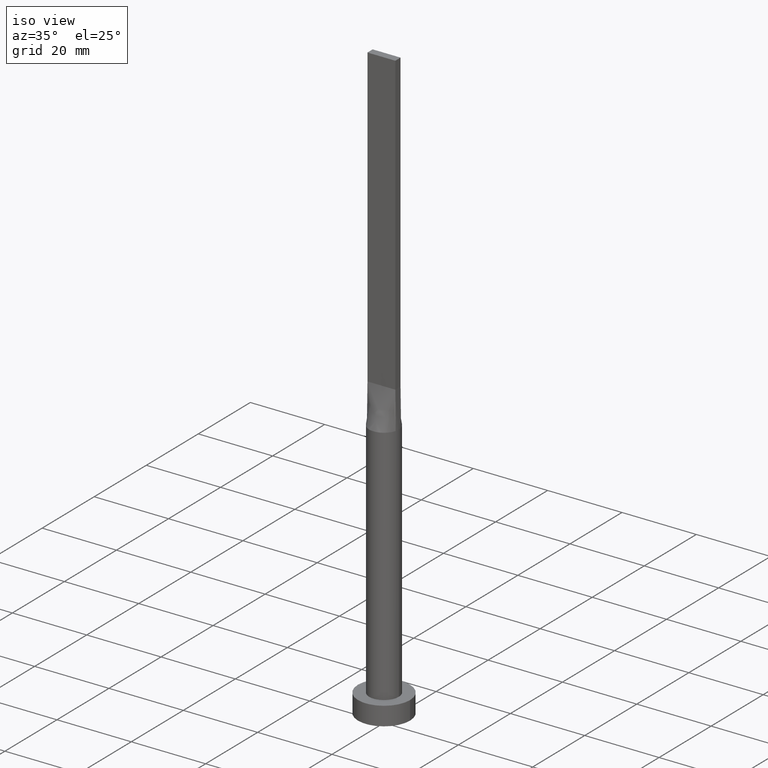
[diagram: clean part render]
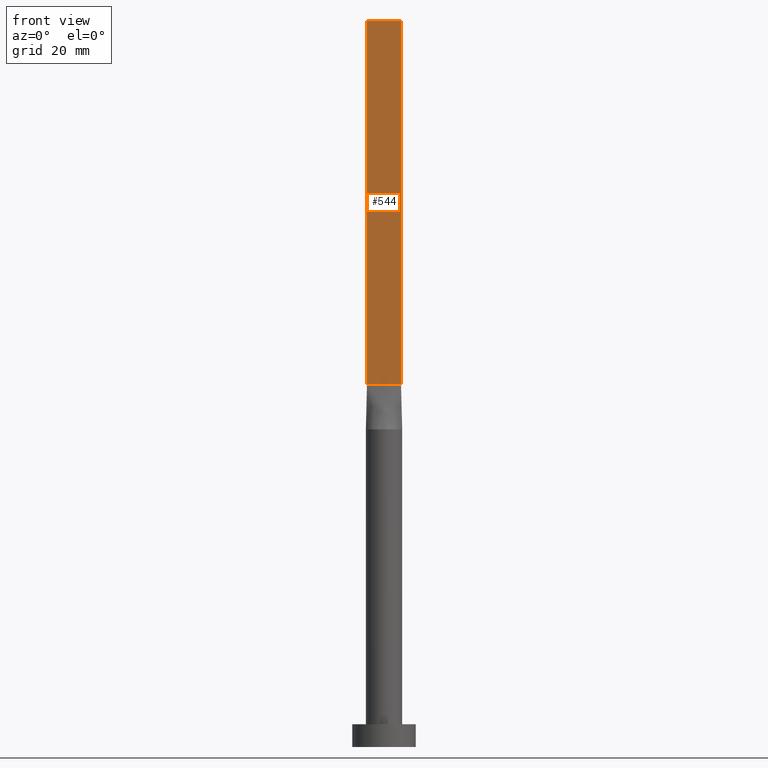
[diagram: tour spotlight — one face highlighted and labeled with its STEP entity id]
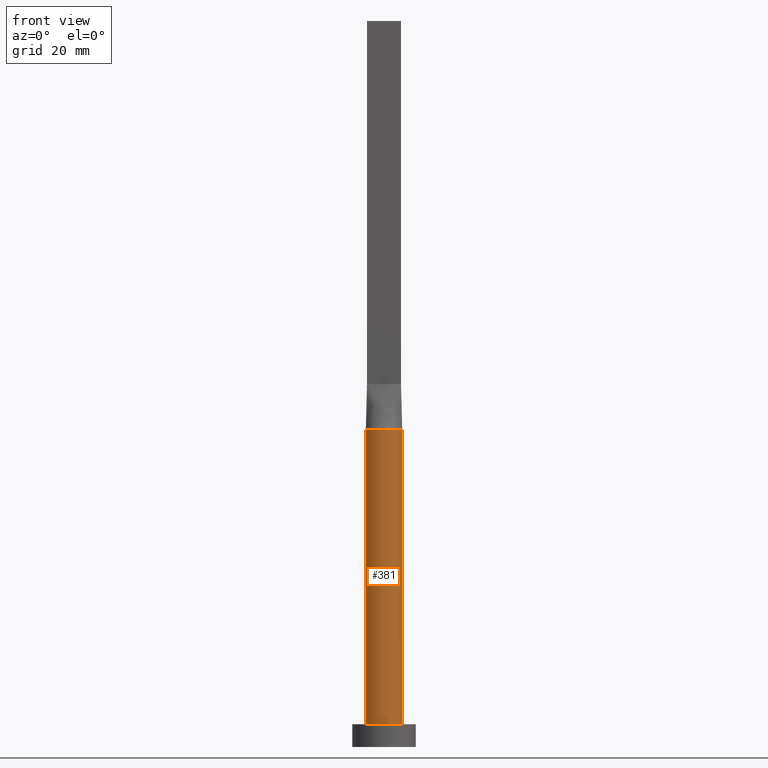
[diagram: tour spotlight — one face highlighted and labeled with its STEP entity id]
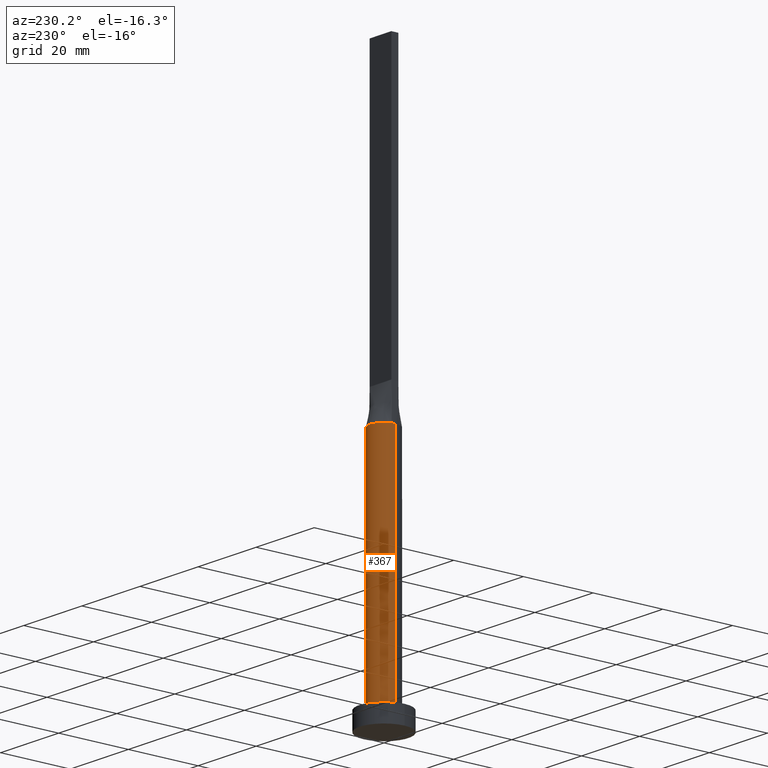
[diagram: tour spotlight — one face highlighted and labeled with its STEP entity id]
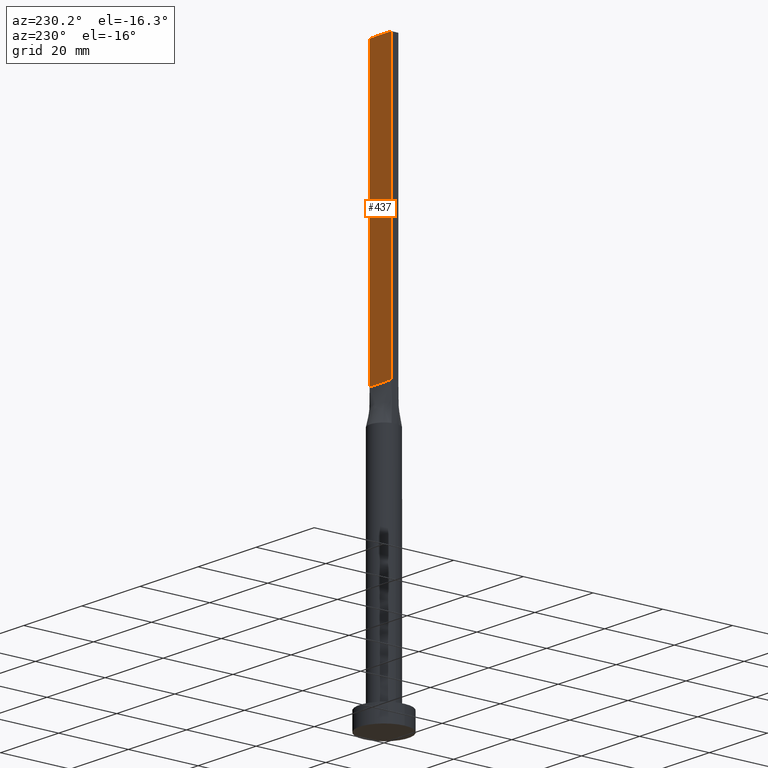
[diagram: tour spotlight — one face highlighted and labeled with its STEP entity id]
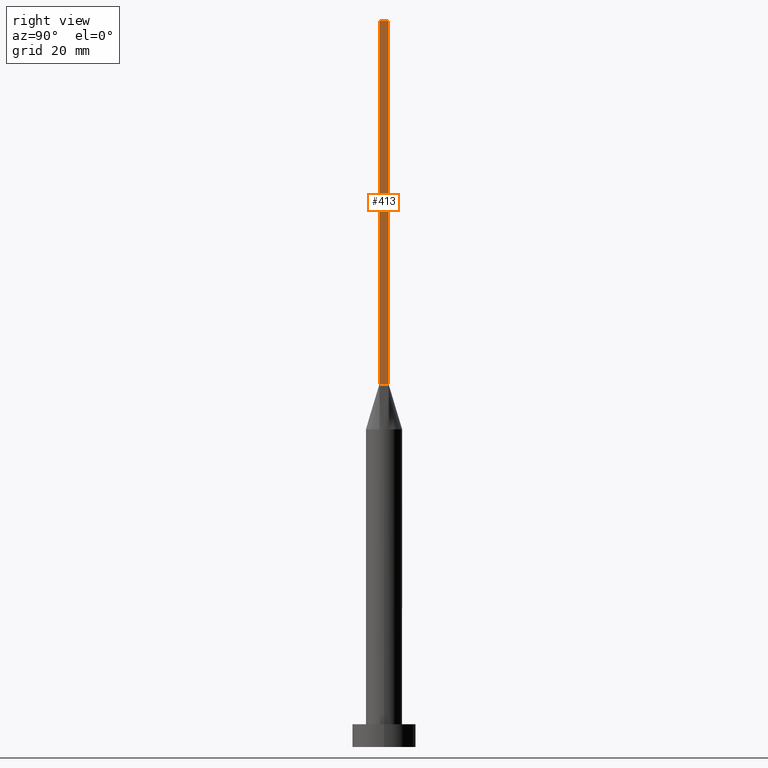
[diagram: tour spotlight — one face highlighted and labeled with its STEP entity id]
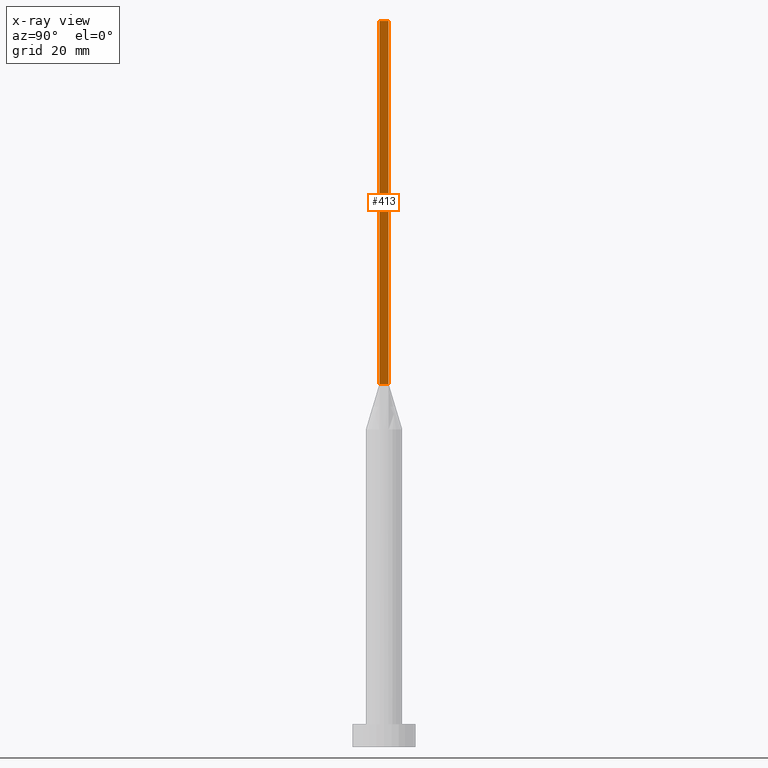
[diagram: x-ray of the same camera — body ghosted, this tour face saturated]
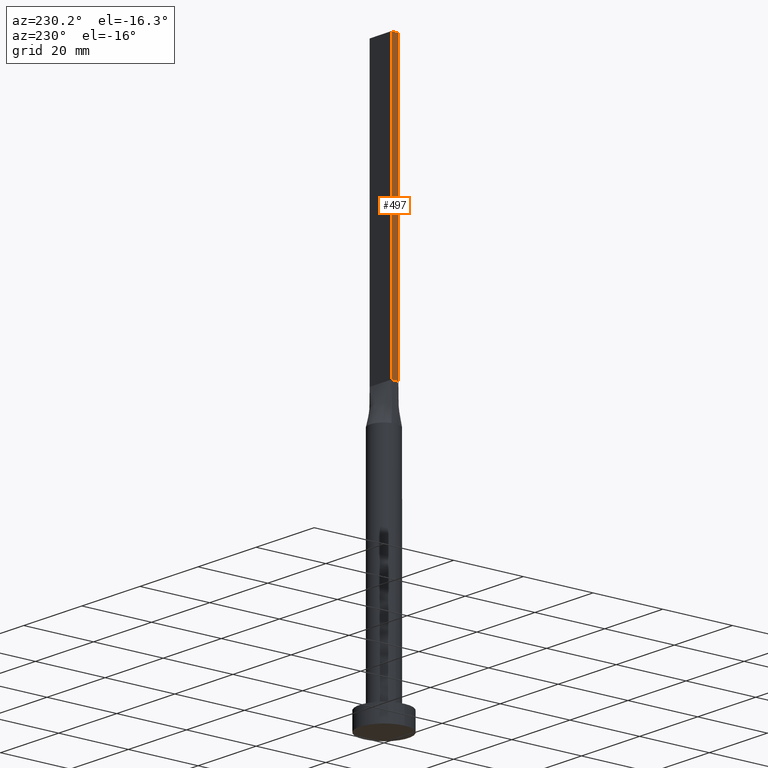
[diagram: tour spotlight — one face highlighted and labeled with its STEP entity id]
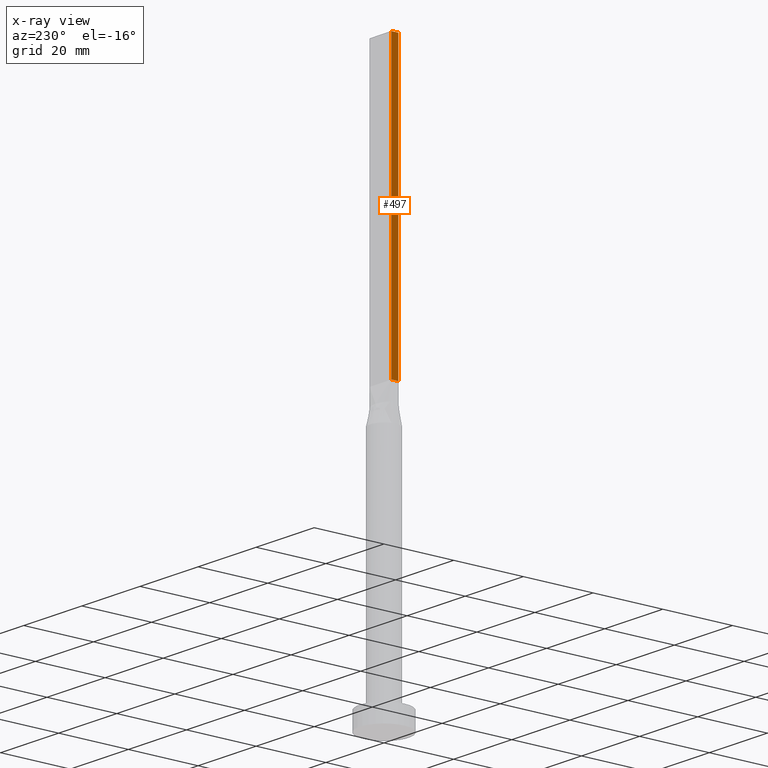
[diagram: x-ray of the same camera — body ghosted, this tour face saturated]
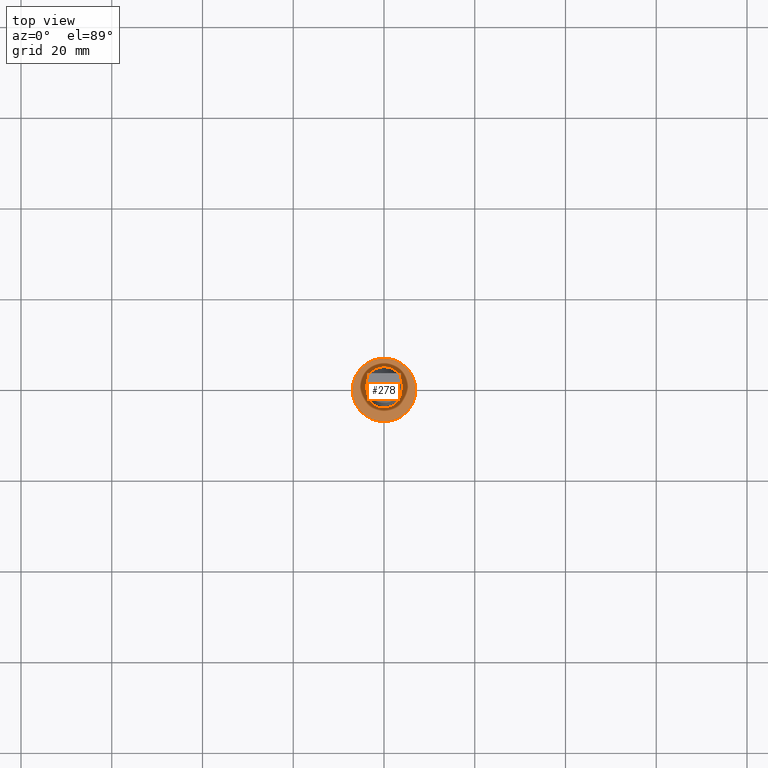
[diagram: tour spotlight — one face highlighted and labeled with its STEP entity id]
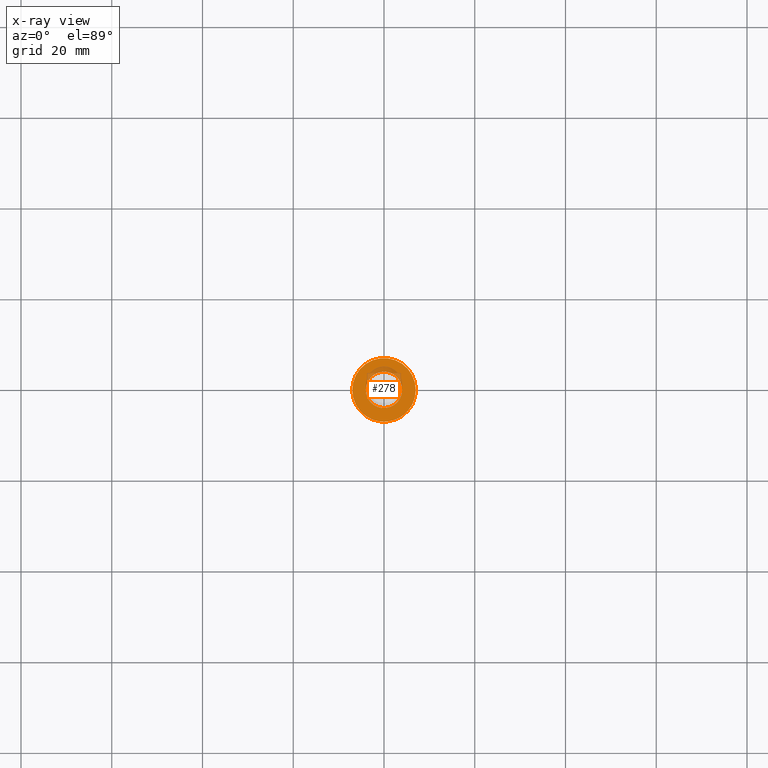
[diagram: x-ray of the same camera — body ghosted, this tour face saturated]
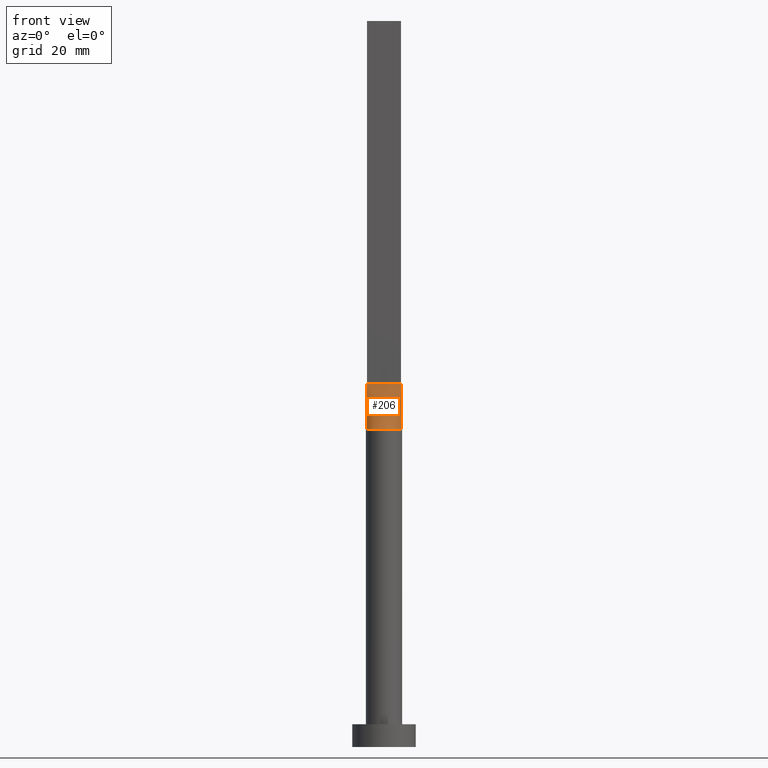
[diagram: tour spotlight — one face highlighted and labeled with its STEP entity id]
A machine part: a face-by-face anatomy tour. The part has 15 B-rep faces; the first image is the clean iso view, then the 8 largest visible faces are spotlighted one at a time (largest first), each with its STEP entity span.

Face 1 — front view, entity #544. In plain terms, the highlighted planar face has unit normal (0, 1, -0).
Definition (entity closure, byte-faithful):
#25 = VERTEX_POINT ( 'NONE', #521 ) ;
#31 = CARTESIAN_POINT ( 'NONE',  ( 3.750000000000000000, -0.9999999999999997780, 160.0000000000000000 ) ) ;
#32 = CARTESIAN_POINT ( 'NONE',  ( -3.750000000000000000, -0.9999999999999991118, 160.0000000000000000 ) ) ;
#54 = CARTESIAN_POINT ( 'NONE',  ( -3.750000000000000000, -0.9999999999999991118, 80.00000000000000000 ) ) ;
#78 = PLANE ( 'NONE',  #412 ) ;
#83 = EDGE_CURVE ( 'NONE', #246, #402, #368, .T. ) ;
#102 = DIRECTION ( 'NONE',  ( 1.000000000000000000, -8.673617379884035472E-17, 0.000000000000000000 ) ) ;
#124 = DIRECTION ( 'NONE',  ( 1.000000000000000000, -8.673617379884035472E-17, 0.000000000000000000 ) ) ;
#145 = VECTOR ( 'NONE', #102, 1000.000000000000000 ) ;
#165 = EDGE_CURVE ( 'NONE', #268, #402, #465, .T. ) ;
#172 = ORIENTED_EDGE ( 'NONE', *, *, #165, .F. ) ;
#202 = DIRECTION ( 'NONE',  ( -0.000000000000000000, -0.000000000000000000, -1.000000000000000000 ) ) ;
#210 = VECTOR ( 'NONE', #202, 1000.000000000000000 ) ;
#214 = ORIENTED_EDGE ( 'NONE', *, *, #447, .F. ) ;
#234 = VECTOR ( 'NONE', #453, 1000.000000000000000 ) ;
#243 = VECTOR ( 'NONE', #124, 1000.000000000000000 ) ;
#246 = VERTEX_POINT ( 'NONE', #54 ) ;
#255 = LINE ( 'NONE', #571, #210 ) ;
#265 = CARTESIAN_POINT ( 'NONE',  ( 3.750000000000000000, -0.9999999999999997780, 160.0000000000000000 ) ) ;
#268 = VERTEX_POINT ( 'NONE', #31 ) ;
#339 = LINE ( 'NONE', #386, #243 ) ;
#368 = LINE ( 'NONE', #513, #145 ) ;
#385 = DIRECTION ( 'NONE',  ( -1.000000000000000000, 8.673617379884035472E-17, 0.000000000000000000 ) ) ;
#386 = CARTESIAN_POINT ( 'NONE',  ( -3.750000000000000000, -0.9999999999999991118, 160.0000000000000000 ) ) ;
#402 = VERTEX_POINT ( 'NONE', #509 ) ;
#412 = AXIS2_PLACEMENT_3D ( 'NONE', #32, #573, #385 ) ;
#447 = EDGE_CURVE ( 'NONE', #25, #268, #339, .T. ) ;
#453 = DIRECTION ( 'NONE',  ( -0.000000000000000000, -0.000000000000000000, -1.000000000000000000 ) ) ;
#465 = LINE ( 'NONE', #265, #234 ) ;
#509 = CARTESIAN_POINT ( 'NONE',  ( 3.750000000000000000, -0.9999999999999997780, 80.00000000000000000 ) ) ;
#513 = CARTESIAN_POINT ( 'NONE',  ( -3.750000000000000000, -0.9999999999999991118, 80.00000000000000000 ) ) ;
#521 = CARTESIAN_POINT ( 'NONE',  ( -3.750000000000000000, -0.9999999999999991118, 160.0000000000000000 ) ) ;
#526 = ORIENTED_EDGE ( 'NONE', *, *, #548, .T. ) ;
#534 = FACE_OUTER_BOUND ( 'NONE', #545, .T. ) ;
#544 = ADVANCED_FACE ( 'NONE', ( #534 ), #78, .F. ) ;
#545 = EDGE_LOOP ( 'NONE', ( #559, #172, #214, #526 ) ) ;
#548 = EDGE_CURVE ( 'NONE', #25, #246, #255, .T. ) ;
#559 = ORIENTED_EDGE ( 'NONE', *, *, #83, .T. ) ;
#571 = CARTESIAN_POINT ( 'NONE',  ( -3.750000000000000000, -0.9999999999999991118, 160.0000000000000000 ) ) ;
#573 = DIRECTION ( 'NONE',  ( 8.673617379884035472E-17, 1.000000000000000000, -0.000000000000000000 ) ) ;

Face 2 — front view, entity #381. In plain terms, the highlighted cylindrical surface (edge-blend (fillet) strip) has radius 4 mm, axis along (-0, -0, -1).
Definition (entity closure, byte-faithful):
#13 = AXIS2_PLACEMENT_3D ( 'NONE', #168, #372, #253 ) ;
#47 = DIRECTION ( 'NONE',  ( 0.000000000000000000, 0.000000000000000000, 1.000000000000000000 ) ) ;
#49 = VERTEX_POINT ( 'NONE', #334 ) ;
#50 = CIRCLE ( 'NONE', #13, 4.000000000000000000 ) ;
#64 = CARTESIAN_POINT ( 'NONE',  ( -3.865220763612065902, -1.030726602927787949, 70.00000000000000000 ) ) ;
#70 = ORIENTED_EDGE ( 'NONE', *, *, #538, .F. ) ;
#79 = CARTESIAN_POINT ( 'NONE',  ( -4.000000000000000000, 0.000000000000000000, 70.00000000000000000 ) ) ;
#86 = AXIS2_PLACEMENT_3D ( 'NONE', #251, #563, #389 ) ;
#115 = EDGE_CURVE ( 'NONE', #231, #504, #345, .T. ) ;
#121 = DIRECTION ( 'NONE',  ( 0.000000000000000000, 0.000000000000000000, 1.000000000000000000 ) ) ;
#130 = ORIENTED_EDGE ( 'NONE', *, *, #487, .F. ) ;
#132 = DIRECTION ( 'NONE',  ( 1.000000000000000000, 0.000000000000000000, 0.000000000000000000 ) ) ;
#135 = VECTOR ( 'NONE', #466, 1000.000000000000000 ) ;
#144 = DIRECTION ( 'NONE',  ( -1.000000000000000000, 0.000000000000000000, 0.000000000000000000 ) ) ;
#153 = LINE ( 'NONE', #514, #135 ) ;
#159 = DIRECTION ( 'NONE',  ( 1.000000000000000000, -6.217248937900876626E-15, 0.000000000000000000 ) ) ;
#168 = CARTESIAN_POINT ( 'NONE',  ( 0.000000000000000000, 0.000000000000000000, 70.00000000000000000 ) ) ;
#193 = FACE_OUTER_BOUND ( 'NONE', #347, .T. ) ;
#203 = CARTESIAN_POINT ( 'NONE',  ( -4.000000000000000000, 0.000000000000000000, 5.000000000000000000 ) ) ;
#231 = VERTEX_POINT ( 'NONE', #522 ) ;
#251 = CARTESIAN_POINT ( 'NONE',  ( 0.000000000000000000, 0.000000000000000000, 70.00000000000000000 ) ) ;
#252 = DIRECTION ( 'NONE',  ( -0.000000000000000000, -0.000000000000000000, -1.000000000000000000 ) ) ;
#253 = DIRECTION ( 'NONE',  ( 1.000000000000000000, 0.000000000000000000, 0.000000000000000000 ) ) ;
#291 = VECTOR ( 'NONE', #252, 1000.000000000000000 ) ;
#311 = EDGE_CURVE ( 'NONE', #504, #312, #556, .T. ) ;
#312 = VERTEX_POINT ( 'NONE', #401 ) ;
#327 = DIRECTION ( 'NONE',  ( -0.000000000000000000, -0.000000000000000000, -1.000000000000000000 ) ) ;
#331 = CIRCLE ( 'NONE', #86, 4.000000000000000000 ) ;
#334 = CARTESIAN_POINT ( 'NONE',  ( 3.865244591400370577, -1.030732999276501527, 70.00000000000000000 ) ) ;
#345 = LINE ( 'NONE', #79, #291 ) ;
#347 = EDGE_LOOP ( 'NONE', ( #577, #130, #433, #70, #533, #428 ) ) ;
#349 = CARTESIAN_POINT ( 'NONE',  ( 0.000000000000000000, 0.000000000000000000, 5.000000000000000000 ) ) ;
#359 = EDGE_CURVE ( 'NONE', #547, #312, #153, .T. ) ;
#360 = CARTESIAN_POINT ( 'NONE',  ( 0.000000000000000000, 0.000000000000000000, 70.00000000000000000 ) ) ;
#362 = AXIS2_PLACEMENT_3D ( 'NONE', #360, #327, #144 ) ;
#372 = DIRECTION ( 'NONE',  ( 0.000000000000000000, 0.000000000000000000, 1.000000000000000000 ) ) ;
#375 = CARTESIAN_POINT ( 'NONE',  ( 4.000000000000000000, -1.256865613583667397E-17, 70.00000000000000000 ) ) ;
#381 = ADVANCED_FACE ( 'NONE', ( #193 ), #477, .T. ) ;
#389 = DIRECTION ( 'NONE',  ( 1.000000000000000000, 0.000000000000000000, 0.000000000000000000 ) ) ;
#401 = CARTESIAN_POINT ( 'NONE',  ( 4.000000000000000000, 4.898587196589412829E-16, 5.000000000000000000 ) ) ;
#428 = ORIENTED_EDGE ( 'NONE', *, *, #311, .T. ) ;
#433 = ORIENTED_EDGE ( 'NONE', *, *, #505, .F. ) ;
#434 = CARTESIAN_POINT ( 'NONE',  ( 0.000000000000000000, 0.000000000000000000, 70.00000000000000000 ) ) ;
#455 = VERTEX_POINT ( 'NONE', #64 ) ;
#466 = DIRECTION ( 'NONE',  ( -0.000000000000000000, -0.000000000000000000, -1.000000000000000000 ) ) ;
#470 = CIRCLE ( 'NONE', #471, 4.000000000000000000 ) ;
#471 = AXIS2_PLACEMENT_3D ( 'NONE', #434, #121, #159 ) ;
#477 = CYLINDRICAL_SURFACE ( 'NONE', #362, 4.000000000000000000 ) ;
#487 = EDGE_CURVE ( 'NONE', #49, #547, #470, .T. ) ;
#504 = VERTEX_POINT ( 'NONE', #203 ) ;
#505 = EDGE_CURVE ( 'NONE', #455, #49, #50, .T. ) ;
#514 = CARTESIAN_POINT ( 'NONE',  ( 4.000000000000000000, 4.898587196589412829E-16, 70.00000000000000000 ) ) ;
#522 = CARTESIAN_POINT ( 'NONE',  ( -4.000000000000000000, -2.459132308497027359E-16, 70.00000000000000000 ) ) ;
#533 = ORIENTED_EDGE ( 'NONE', *, *, #115, .T. ) ;
#538 = EDGE_CURVE ( 'NONE', #231, #455, #331, .T. ) ;
#547 = VERTEX_POINT ( 'NONE', #375 ) ;
#556 = CIRCLE ( 'NONE', #568, 4.000000000000000000 ) ;
#563 = DIRECTION ( 'NONE',  ( 0.000000000000000000, 0.000000000000000000, 1.000000000000000000 ) ) ;
#568 = AXIS2_PLACEMENT_3D ( 'NONE', #349, #47, #132 ) ;
#577 = ORIENTED_EDGE ( 'NONE', *, *, #359, .F. ) ;

Face 3 — auxiliary view, entity #367. In plain terms, the highlighted cylindrical surface (edge-blend (fillet) strip) has radius 4 mm, axis along (-0, -0, -1).
Definition (entity closure, byte-faithful):
#2 = CIRCLE ( 'NONE', #260, 4.000000000000000000 ) ;
#3 = DIRECTION ( 'NONE',  ( 1.000000000000000000, 0.000000000000000000, 0.000000000000000000 ) ) ;
#10 = CARTESIAN_POINT ( 'NONE',  ( -3.009488128496037529, 2.672487015486668671, 69.99999999999998579 ) ) ;
#14 = DIRECTION ( 'NONE',  ( -1.000000000000000000, 0.000000000000000000, 0.000000000000000000 ) ) ;
#19 = CARTESIAN_POINT ( 'NONE',  ( -3.865236553917747120, 1.030730781768519622, 70.00000000000000000 ) ) ;
#29 = CARTESIAN_POINT ( 'NONE',  ( 3.865212754195084699, 1.030724393897464841, 70.00000000000000000 ) ) ;
#42 = AXIS2_PLACEMENT_3D ( 'NONE', #284, #147, #14 ) ;
#43 = EDGE_LOOP ( 'NONE', ( #163, #540, #541, #261, #223, #84 ) ) ;
#56 = CARTESIAN_POINT ( 'NONE',  ( 3.267840578657193795, 2.338604872288698289, 70.00000000000000000 ) ) ;
#60 = CARTESIAN_POINT ( 'NONE',  ( 3.865212754195084699, 1.030724393897464841, 70.00000000000000000 ) ) ;
#66 = EDGE_CURVE ( 'NONE', #312, #504, #511, .T. ) ;
#79 = CARTESIAN_POINT ( 'NONE',  ( -4.000000000000000000, 0.000000000000000000, 70.00000000000000000 ) ) ;
#84 = ORIENTED_EDGE ( 'NONE', *, *, #405, .F. ) ;
#97 = CARTESIAN_POINT ( 'NONE',  ( 1.023074425454087999, 3.898373771260456255, 69.99999999999998579 ) ) ;
#108 = CARTESIAN_POINT ( 'NONE',  ( -1.023074425454088221, 3.898373771260455811, 70.00000000000001421 ) ) ;
#112 = FACE_OUTER_BOUND ( 'NONE', #43, .T. ) ;
#115 = EDGE_CURVE ( 'NONE', #231, #504, #345, .T. ) ;
#135 = VECTOR ( 'NONE', #466, 1000.000000000000000 ) ;
#147 = DIRECTION ( 'NONE',  ( -0.000000000000000000, -0.000000000000000000, -1.000000000000000000 ) ) ;
#150 = CARTESIAN_POINT ( 'NONE',  ( -0.5121855420560009753, 4.000000000000000888, 69.99999999999998579 ) ) ;
#153 = LINE ( 'NONE', #514, #135 ) ;
#154 = AXIS2_PLACEMENT_3D ( 'NONE', #557, #198, #519 ) ;
#163 = ORIENTED_EDGE ( 'NONE', *, *, #174, .F. ) ;
#174 = EDGE_CURVE ( 'NONE', #547, #491, #342, .T. ) ;
#189 = CYLINDRICAL_SURFACE ( 'NONE', #42, 4.000000000000000000 ) ;
#198 = DIRECTION ( 'NONE',  ( 0.000000000000000000, 0.000000000000000000, 1.000000000000000000 ) ) ;
#203 = CARTESIAN_POINT ( 'NONE',  ( -4.000000000000000000, 0.000000000000000000, 5.000000000000000000 ) ) ;
#204 = VERTEX_POINT ( 'NONE', #569 ) ;
#223 = ORIENTED_EDGE ( 'NONE', *, *, #301, .F. ) ;
#230 = CARTESIAN_POINT ( 'NONE',  ( 0.000000000000000000, 0.000000000000000000, 70.00000000000000000 ) ) ;
#231 = VERTEX_POINT ( 'NONE', #522 ) ;
#239 = CARTESIAN_POINT ( 'NONE',  ( 3.009488128496037085, 2.672487015486669115, 70.00000000000000000 ) ) ;
#242 = CARTESIAN_POINT ( 'NONE',  ( 3.781952206537764205, 1.341853921743403788, 70.00000000000001421 ) ) ;
#252 = DIRECTION ( 'NONE',  ( -0.000000000000000000, -0.000000000000000000, -1.000000000000000000 ) ) ;
#260 = AXIS2_PLACEMENT_3D ( 'NONE', #230, #399, #3 ) ;
#261 = ORIENTED_EDGE ( 'NONE', *, *, #115, .F. ) ;
#284 = CARTESIAN_POINT ( 'NONE',  ( 0.000000000000000000, 0.000000000000000000, 70.00000000000000000 ) ) ;
#291 = VECTOR ( 'NONE', #252, 1000.000000000000000 ) ;
#301 = EDGE_CURVE ( 'NONE', #204, #231, #2, .T. ) ;
#312 = VERTEX_POINT ( 'NONE', #401 ) ;
#322 = CARTESIAN_POINT ( 'NONE',  ( -3.653499896451231521, 1.673258289339058180, 70.00000000000001421 ) ) ;
#333 = AXIS2_PLACEMENT_3D ( 'NONE', #363, #403, #553 ) ;
#342 = CIRCLE ( 'NONE', #333, 4.000000000000000000 ) ;
#345 = LINE ( 'NONE', #79, #291 ) ;
#359 = EDGE_CURVE ( 'NONE', #547, #312, #153, .T. ) ;
#361 = CARTESIAN_POINT ( 'NONE',  ( 0.5121855420560009753, 4.000000000000000888, 70.00000000000000000 ) ) ;
#363 = CARTESIAN_POINT ( 'NONE',  ( 0.000000000000000000, 0.000000000000000000, 70.00000000000000000 ) ) ;
#366 = CARTESIAN_POINT ( 'NONE',  ( -2.346407003458401253, 3.270103945996944095, 70.00000000000001421 ) ) ;
#367 = ADVANCED_FACE ( 'NONE', ( #112 ), #189, .T. ) ;
#375 = CARTESIAN_POINT ( 'NONE',  ( 4.000000000000000000, -1.256865613583667397E-17, 70.00000000000000000 ) ) ;
#399 = DIRECTION ( 'NONE',  ( 0.000000000000000000, 0.000000000000000000, 1.000000000000000000 ) ) ;
#401 = CARTESIAN_POINT ( 'NONE',  ( 4.000000000000000000, 4.898587196589412829E-16, 5.000000000000000000 ) ) ;
#403 = DIRECTION ( 'NONE',  ( 0.000000000000000000, 0.000000000000000000, 1.000000000000000000 ) ) ;
#405 = EDGE_CURVE ( 'NONE', #491, #204, #558, .T. ) ;
#416 = CARTESIAN_POINT ( 'NONE',  ( 1.940702937457743582, 3.532374760555930582, 70.00000000000000000 ) ) ;
#420 = CARTESIAN_POINT ( 'NONE',  ( -1.940702937457743138, 3.532374760555930582, 69.99999999999998579 ) ) ;
#466 = DIRECTION ( 'NONE',  ( -0.000000000000000000, -0.000000000000000000, -1.000000000000000000 ) ) ;
#469 = CARTESIAN_POINT ( 'NONE',  ( 3.653499896451231521, 1.673258289339057958, 70.00000000000000000 ) ) ;
#473 = CARTESIAN_POINT ( 'NONE',  ( 2.346407003458400808, 3.270103945996944983, 69.99999999999998579 ) ) ;
#491 = VERTEX_POINT ( 'NONE', #29 ) ;
#504 = VERTEX_POINT ( 'NONE', #203 ) ;
#511 = CIRCLE ( 'NONE', #154, 4.000000000000000000 ) ;
#512 = CARTESIAN_POINT ( 'NONE',  ( -3.781952206537765537, 1.341853921743403788, 70.00000000000001421 ) ) ;
#514 = CARTESIAN_POINT ( 'NONE',  ( 4.000000000000000000, 4.898587196589412829E-16, 70.00000000000000000 ) ) ;
#519 = DIRECTION ( 'NONE',  ( 1.000000000000000000, 0.000000000000000000, 0.000000000000000000 ) ) ;
#522 = CARTESIAN_POINT ( 'NONE',  ( -4.000000000000000000, -2.459132308497027359E-16, 70.00000000000000000 ) ) ;
#540 = ORIENTED_EDGE ( 'NONE', *, *, #359, .T. ) ;
#541 = ORIENTED_EDGE ( 'NONE', *, *, #66, .T. ) ;
#547 = VERTEX_POINT ( 'NONE', #375 ) ;
#550 = CARTESIAN_POINT ( 'NONE',  ( -3.267840578657194239, 2.338604872288698289, 70.00000000000001421 ) ) ;
#553 = DIRECTION ( 'NONE',  ( 1.000000000000000000, 0.000000000000000000, 0.000000000000000000 ) ) ;
#557 = CARTESIAN_POINT ( 'NONE',  ( 0.000000000000000000, 0.000000000000000000, 5.000000000000000000 ) ) ;
#558 = B_SPLINE_CURVE_WITH_KNOTS ( 'NONE', 3,
 ( #60, #242, #469, #56, #239, #473, #416, #97, #361, #150, #108, #420, #366, #10, #550, #322, #512, #19 ),
 .UNSPECIFIED., .F., .F.,
 ( 4, 2, 2, 2, 2, 2, 2, 2, 4 ),
 ( 0.000000000000000000, 0.1250000000000000000, 0.2500000000000000000, 0.3750000000000000000, 0.5000000000000000000, 0.6250000000000000000, 0.7500000000000000000, 0.8750000000000000000, 1.000000000000000000 ),
 .UNSPECIFIED. ) ;
#569 = CARTESIAN_POINT ( 'NONE',  ( -3.865236553917747120, 1.030730781768519622, 70.00000000000000000 ) ) ;

Face 4 — auxiliary view, entity #437. In plain terms, the highlighted planar face has unit normal (0, -1, 0).
Definition (entity closure, byte-faithful):
#16 = EDGE_CURVE ( 'NONE', #350, #579, #146, .T. ) ;
#21 = CARTESIAN_POINT ( 'NONE',  ( 3.750000000000000000, 1.000000000000000000, 160.0000000000000000 ) ) ;
#99 = CARTESIAN_POINT ( 'NONE',  ( -3.750000000000000000, 1.000000000000000000, 160.0000000000000000 ) ) ;
#100 = CARTESIAN_POINT ( 'NONE',  ( 3.750000000000000000, 1.000000000000000000, 80.00000000000000000 ) ) ;
#133 = VERTEX_POINT ( 'NONE', #100 ) ;
#146 = LINE ( 'NONE', #99, #279 ) ;
#164 = CARTESIAN_POINT ( 'NONE',  ( -3.750000000000000000, 1.000000000000000000, 80.00000000000000000 ) ) ;
#201 = LINE ( 'NONE', #248, #450 ) ;
#219 = LINE ( 'NONE', #394, #461 ) ;
#235 = CARTESIAN_POINT ( 'NONE',  ( -3.750000000000000000, 1.000000000000000000, 160.0000000000000000 ) ) ;
#248 = CARTESIAN_POINT ( 'NONE',  ( 3.750000000000000000, 1.000000000000000000, 160.0000000000000000 ) ) ;
#264 = EDGE_CURVE ( 'NONE', #464, #350, #435, .T. ) ;
#279 = VECTOR ( 'NONE', #410, 1000.000000000000000 ) ;
#290 = VECTOR ( 'NONE', #486, 1000.000000000000000 ) ;
#302 = DIRECTION ( 'NONE',  ( -0.000000000000000000, -0.000000000000000000, -1.000000000000000000 ) ) ;
#303 = AXIS2_PLACEMENT_3D ( 'NONE', #21, #335, #560 ) ;
#335 = DIRECTION ( 'NONE',  ( 0.000000000000000000, -1.000000000000000000, 0.000000000000000000 ) ) ;
#350 = VERTEX_POINT ( 'NONE', #235 ) ;
#351 = EDGE_CURVE ( 'NONE', #133, #579, #219, .T. ) ;
#370 = ORIENTED_EDGE ( 'NONE', *, *, #264, .F. ) ;
#394 = CARTESIAN_POINT ( 'NONE',  ( -3.750000000000000000, 1.000000000000000000, 80.00000000000000000 ) ) ;
#396 = EDGE_LOOP ( 'NONE', ( #496, #498, #370, #421 ) ) ;
#410 = DIRECTION ( 'NONE',  ( -0.000000000000000000, -0.000000000000000000, -1.000000000000000000 ) ) ;
#421 = ORIENTED_EDGE ( 'NONE', *, *, #476, .T. ) ;
#431 = CARTESIAN_POINT ( 'NONE',  ( 3.750000000000000000, 1.000000000000000000, 160.0000000000000000 ) ) ;
#435 = LINE ( 'NONE', #530, #290 ) ;
#437 = ADVANCED_FACE ( 'NONE', ( #535 ), #489, .F. ) ;
#450 = VECTOR ( 'NONE', #302, 1000.000000000000000 ) ;
#461 = VECTOR ( 'NONE', #576, 1000.000000000000000 ) ;
#464 = VERTEX_POINT ( 'NONE', #431 ) ;
#476 = EDGE_CURVE ( 'NONE', #464, #133, #201, .T. ) ;
#486 = DIRECTION ( 'NONE',  ( -1.000000000000000000, 0.000000000000000000, 0.000000000000000000 ) ) ;
#489 = PLANE ( 'NONE',  #303 ) ;
#496 = ORIENTED_EDGE ( 'NONE', *, *, #351, .T. ) ;
#498 = ORIENTED_EDGE ( 'NONE', *, *, #16, .F. ) ;
#530 = CARTESIAN_POINT ( 'NONE',  ( 3.750000000000000000, 1.000000000000000000, 160.0000000000000000 ) ) ;
#535 = FACE_OUTER_BOUND ( 'NONE', #396, .T. ) ;
#560 = DIRECTION ( 'NONE',  ( 0.000000000000000000, -0.000000000000000000, -1.000000000000000000 ) ) ;
#576 = DIRECTION ( 'NONE',  ( -1.000000000000000000, -0.000000000000000000, -0.000000000000000000 ) ) ;
#579 = VERTEX_POINT ( 'NONE', #164 ) ;

Face 5 — right view, entity #413. An x-ray twin of the same camera follows (body ghosted, this face saturated) — the face is partly hidden behind the body. In plain terms, the highlighted planar face has unit normal (-1, 0, 0).
Definition (entity closure, byte-faithful):
#31 = CARTESIAN_POINT ( 'NONE',  ( 3.750000000000000000, -0.9999999999999997780, 160.0000000000000000 ) ) ;
#34 = DIRECTION ( 'NONE',  ( 0.000000000000000000, 1.000000000000000000, 0.000000000000000000 ) ) ;
#58 = EDGE_CURVE ( 'NONE', #402, #133, #516, .T. ) ;
#100 = CARTESIAN_POINT ( 'NONE',  ( 3.750000000000000000, 1.000000000000000000, 80.00000000000000000 ) ) ;
#101 = PLANE ( 'NONE',  #492 ) ;
#113 = CARTESIAN_POINT ( 'NONE',  ( 3.750000000000000000, 1.000000000000000000, 80.00000000000000000 ) ) ;
#119 = EDGE_LOOP ( 'NONE', ( #501, #176, #299, #220 ) ) ;
#133 = VERTEX_POINT ( 'NONE', #100 ) ;
#165 = EDGE_CURVE ( 'NONE', #268, #402, #465, .T. ) ;
#176 = ORIENTED_EDGE ( 'NONE', *, *, #476, .F. ) ;
#185 = VECTOR ( 'NONE', #240, 1000.000000000000000 ) ;
#197 = FACE_OUTER_BOUND ( 'NONE', #119, .T. ) ;
#201 = LINE ( 'NONE', #248, #450 ) ;
#220 = ORIENTED_EDGE ( 'NONE', *, *, #165, .T. ) ;
#234 = VECTOR ( 'NONE', #453, 1000.000000000000000 ) ;
#240 = DIRECTION ( 'NONE',  ( -0.000000000000000000, 1.000000000000000000, -0.000000000000000000 ) ) ;
#248 = CARTESIAN_POINT ( 'NONE',  ( 3.750000000000000000, 1.000000000000000000, 160.0000000000000000 ) ) ;
#265 = CARTESIAN_POINT ( 'NONE',  ( 3.750000000000000000, -0.9999999999999997780, 160.0000000000000000 ) ) ;
#268 = VERTEX_POINT ( 'NONE', #31 ) ;
#275 = DIRECTION ( 'NONE',  ( -1.000000000000000000, 0.000000000000000000, 0.000000000000000000 ) ) ;
#297 = DIRECTION ( 'NONE',  ( 0.000000000000000000, 0.000000000000000000, 1.000000000000000000 ) ) ;
#299 = ORIENTED_EDGE ( 'NONE', *, *, #424, .F. ) ;
#302 = DIRECTION ( 'NONE',  ( -0.000000000000000000, -0.000000000000000000, -1.000000000000000000 ) ) ;
#369 = VECTOR ( 'NONE', #34, 1000.000000000000000 ) ;
#402 = VERTEX_POINT ( 'NONE', #509 ) ;
#413 = ADVANCED_FACE ( 'NONE', ( #197 ), #101, .F. ) ;
#423 = LINE ( 'NONE', #478, #369 ) ;
#424 = EDGE_CURVE ( 'NONE', #268, #464, #423, .T. ) ;
#431 = CARTESIAN_POINT ( 'NONE',  ( 3.750000000000000000, 1.000000000000000000, 160.0000000000000000 ) ) ;
#450 = VECTOR ( 'NONE', #302, 1000.000000000000000 ) ;
#453 = DIRECTION ( 'NONE',  ( -0.000000000000000000, -0.000000000000000000, -1.000000000000000000 ) ) ;
#464 = VERTEX_POINT ( 'NONE', #431 ) ;
#465 = LINE ( 'NONE', #265, #234 ) ;
#476 = EDGE_CURVE ( 'NONE', #464, #133, #201, .T. ) ;
#478 = CARTESIAN_POINT ( 'NONE',  ( 3.750000000000000000, -0.9999999999999997780, 160.0000000000000000 ) ) ;
#492 = AXIS2_PLACEMENT_3D ( 'NONE', #555, #275, #297 ) ;
#501 = ORIENTED_EDGE ( 'NONE', *, *, #58, .T. ) ;
#509 = CARTESIAN_POINT ( 'NONE',  ( 3.750000000000000000, -0.9999999999999997780, 80.00000000000000000 ) ) ;
#516 = LINE ( 'NONE', #113, #185 ) ;
#555 = CARTESIAN_POINT ( 'NONE',  ( 3.750000000000000000, -0.9999999999999997780, 160.0000000000000000 ) ) ;

Face 6 — auxiliary view, entity #497. An x-ray twin of the same camera follows (body ghosted, this face saturated) — the face is partly hidden behind the body. In plain terms, the highlighted planar face has unit normal (1, 0, -0).
Definition (entity closure, byte-faithful):
#16 = EDGE_CURVE ( 'NONE', #350, #579, #146, .T. ) ;
#25 = VERTEX_POINT ( 'NONE', #521 ) ;
#54 = CARTESIAN_POINT ( 'NONE',  ( -3.750000000000000000, -0.9999999999999991118, 80.00000000000000000 ) ) ;
#76 = FACE_OUTER_BOUND ( 'NONE', #400, .T. ) ;
#80 = ORIENTED_EDGE ( 'NONE', *, *, #548, .F. ) ;
#99 = CARTESIAN_POINT ( 'NONE',  ( -3.750000000000000000, 1.000000000000000000, 160.0000000000000000 ) ) ;
#117 = AXIS2_PLACEMENT_3D ( 'NONE', #570, #523, #427 ) ;
#146 = LINE ( 'NONE', #99, #279 ) ;
#155 = ORIENTED_EDGE ( 'NONE', *, *, #192, .T. ) ;
#164 = CARTESIAN_POINT ( 'NONE',  ( -3.750000000000000000, 1.000000000000000000, 80.00000000000000000 ) ) ;
#171 = CARTESIAN_POINT ( 'NONE',  ( -3.750000000000000000, 1.000000000000000000, 160.0000000000000000 ) ) ;
#192 = EDGE_CURVE ( 'NONE', #579, #246, #325, .T. ) ;
#202 = DIRECTION ( 'NONE',  ( -0.000000000000000000, -0.000000000000000000, -1.000000000000000000 ) ) ;
#210 = VECTOR ( 'NONE', #202, 1000.000000000000000 ) ;
#227 = ORIENTED_EDGE ( 'NONE', *, *, #16, .T. ) ;
#235 = CARTESIAN_POINT ( 'NONE',  ( -3.750000000000000000, 1.000000000000000000, 160.0000000000000000 ) ) ;
#237 = ORIENTED_EDGE ( 'NONE', *, *, #292, .F. ) ;
#246 = VERTEX_POINT ( 'NONE', #54 ) ;
#255 = LINE ( 'NONE', #571, #210 ) ;
#270 = VECTOR ( 'NONE', #475, 1000.000000000000000 ) ;
#279 = VECTOR ( 'NONE', #410, 1000.000000000000000 ) ;
#287 = CARTESIAN_POINT ( 'NONE',  ( -3.750000000000000000, 1.000000000000000000, 80.00000000000000000 ) ) ;
#292 = EDGE_CURVE ( 'NONE', #350, #25, #500, .T. ) ;
#325 = LINE ( 'NONE', #287, #270 ) ;
#350 = VERTEX_POINT ( 'NONE', #235 ) ;
#380 = PLANE ( 'NONE',  #117 ) ;
#400 = EDGE_LOOP ( 'NONE', ( #155, #80, #237, #227 ) ) ;
#410 = DIRECTION ( 'NONE',  ( -0.000000000000000000, -0.000000000000000000, -1.000000000000000000 ) ) ;
#427 = DIRECTION ( 'NONE',  ( -0.000000000000000000, 0.000000000000000000, -1.000000000000000000 ) ) ;
#436 = VECTOR ( 'NONE', #446, 1000.000000000000000 ) ;
#446 = DIRECTION ( 'NONE',  ( 0.000000000000000000, -1.000000000000000000, 0.000000000000000000 ) ) ;
#475 = DIRECTION ( 'NONE',  ( 0.000000000000000000, -1.000000000000000000, 0.000000000000000000 ) ) ;
#497 = ADVANCED_FACE ( 'NONE', ( #76 ), #380, .F. ) ;
#500 = LINE ( 'NONE', #171, #436 ) ;
#521 = CARTESIAN_POINT ( 'NONE',  ( -3.750000000000000000, -0.9999999999999991118, 160.0000000000000000 ) ) ;
#523 = DIRECTION ( 'NONE',  ( 1.000000000000000000, 0.000000000000000000, -0.000000000000000000 ) ) ;
#548 = EDGE_CURVE ( 'NONE', #25, #246, #255, .T. ) ;
#570 = CARTESIAN_POINT ( 'NONE',  ( -3.750000000000000000, 1.000000000000000000, 160.0000000000000000 ) ) ;
#571 = CARTESIAN_POINT ( 'NONE',  ( -3.750000000000000000, -0.9999999999999991118, 160.0000000000000000 ) ) ;
#579 = VERTEX_POINT ( 'NONE', #164 ) ;

Face 7 — top view, entity #278. An x-ray twin of the same camera follows (body ghosted, this face saturated) — the face is partly hidden behind the body. In plain terms, the highlighted planar face has unit normal (0, 0, 1).
Definition (entity closure, byte-faithful):
#23 = DIRECTION ( 'NONE',  ( 1.000000000000000000, 0.000000000000000000, 0.000000000000000000 ) ) ;
#47 = DIRECTION ( 'NONE',  ( 0.000000000000000000, 0.000000000000000000, 1.000000000000000000 ) ) ;
#66 = EDGE_CURVE ( 'NONE', #312, #504, #511, .T. ) ;
#88 = AXIS2_PLACEMENT_3D ( 'NONE', #525, #161, #340 ) ;
#94 = VERTEX_POINT ( 'NONE', #195 ) ;
#132 = DIRECTION ( 'NONE',  ( 1.000000000000000000, 0.000000000000000000, 0.000000000000000000 ) ) ;
#154 = AXIS2_PLACEMENT_3D ( 'NONE', #557, #198, #519 ) ;
#161 = DIRECTION ( 'NONE',  ( 0.000000000000000000, 0.000000000000000000, 1.000000000000000000 ) ) ;
#184 = CIRCLE ( 'NONE', #518, 7.000000000000000000 ) ;
#195 = CARTESIAN_POINT ( 'NONE',  ( 7.000000000000000000, 8.572527594031473190E-16, 5.000000000000000000 ) ) ;
#198 = DIRECTION ( 'NONE',  ( 0.000000000000000000, 0.000000000000000000, 1.000000000000000000 ) ) ;
#203 = CARTESIAN_POINT ( 'NONE',  ( -4.000000000000000000, 0.000000000000000000, 5.000000000000000000 ) ) ;
#226 = DIRECTION ( 'NONE',  ( 1.000000000000000000, 0.000000000000000000, -0.000000000000000000 ) ) ;
#250 = ORIENTED_EDGE ( 'NONE', *, *, #311, .F. ) ;
#254 = EDGE_CURVE ( 'NONE', #562, #94, #414, .T. ) ;
#256 = DIRECTION ( 'NONE',  ( 0.000000000000000000, 0.000000000000000000, 1.000000000000000000 ) ) ;
#278 = ADVANCED_FACE ( 'NONE', ( #313, #309 ), #454, .T. ) ;
#295 = ORIENTED_EDGE ( 'NONE', *, *, #66, .F. ) ;
#296 = CARTESIAN_POINT ( 'NONE',  ( -7.000000000000000000, 0.000000000000000000, 5.000000000000000000 ) ) ;
#300 = DIRECTION ( 'NONE',  ( 0.000000000000000000, 0.000000000000000000, 1.000000000000000000 ) ) ;
#309 = FACE_OUTER_BOUND ( 'NONE', #507, .T. ) ;
#311 = EDGE_CURVE ( 'NONE', #504, #312, #556, .T. ) ;
#312 = VERTEX_POINT ( 'NONE', #401 ) ;
#313 = FACE_BOUND ( 'NONE', #440, .T. ) ;
#340 = DIRECTION ( 'NONE',  ( 1.000000000000000000, 0.000000000000000000, 0.000000000000000000 ) ) ;
#349 = CARTESIAN_POINT ( 'NONE',  ( 0.000000000000000000, 0.000000000000000000, 5.000000000000000000 ) ) ;
#391 = ORIENTED_EDGE ( 'NONE', *, *, #254, .T. ) ;
#401 = CARTESIAN_POINT ( 'NONE',  ( 4.000000000000000000, 4.898587196589412829E-16, 5.000000000000000000 ) ) ;
#414 = CIRCLE ( 'NONE', #88, 7.000000000000000000 ) ;
#440 = EDGE_LOOP ( 'NONE', ( #250, #295 ) ) ;
#448 = ORIENTED_EDGE ( 'NONE', *, *, #581, .T. ) ;
#454 = PLANE ( 'NONE',  #537 ) ;
#458 = CARTESIAN_POINT ( 'NONE',  ( 0.000000000000000000, 0.000000000000000000, 5.000000000000000000 ) ) ;
#504 = VERTEX_POINT ( 'NONE', #203 ) ;
#507 = EDGE_LOOP ( 'NONE', ( #391, #448 ) ) ;
#511 = CIRCLE ( 'NONE', #154, 4.000000000000000000 ) ;
#518 = AXIS2_PLACEMENT_3D ( 'NONE', #528, #300, #23 ) ;
#519 = DIRECTION ( 'NONE',  ( 1.000000000000000000, 0.000000000000000000, 0.000000000000000000 ) ) ;
#525 = CARTESIAN_POINT ( 'NONE',  ( 0.000000000000000000, 0.000000000000000000, 5.000000000000000000 ) ) ;
#528 = CARTESIAN_POINT ( 'NONE',  ( 0.000000000000000000, 0.000000000000000000, 5.000000000000000000 ) ) ;
#537 = AXIS2_PLACEMENT_3D ( 'NONE', #458, #256, #226 ) ;
#556 = CIRCLE ( 'NONE', #568, 4.000000000000000000 ) ;
#557 = CARTESIAN_POINT ( 'NONE',  ( 0.000000000000000000, 0.000000000000000000, 5.000000000000000000 ) ) ;
#562 = VERTEX_POINT ( 'NONE', #296 ) ;
#568 = AXIS2_PLACEMENT_3D ( 'NONE', #349, #47, #132 ) ;
#581 = EDGE_CURVE ( 'NONE', #94, #562, #184, .T. ) ;

Face 8 — front view, entity #206. In plain terms, the highlighted face is a freeform B-spline surface patch.
Definition (entity closure, byte-faithful):
#6 = CARTESIAN_POINT ( 'NONE',  ( 0.6249999999999806821, -0.9999999999999995559, 79.99999999999998579 ) ) ;
#13 = AXIS2_PLACEMENT_3D ( 'NONE', #168, #372, #253 ) ;
#41 = CARTESIAN_POINT ( 'NONE',  ( -2.500000000000011102, -0.9999999999999991118, 79.99999999999998579 ) ) ;
#44 = CARTESIAN_POINT ( 'NONE',  ( 2.499999999999988898, -0.9999999999999995559, 79.99999999999998579 ) ) ;
#49 = VERTEX_POINT ( 'NONE', #334 ) ;
#50 = CIRCLE ( 'NONE', #13, 4.000000000000000000 ) ;
#54 = CARTESIAN_POINT ( 'NONE',  ( -3.750000000000000000, -0.9999999999999991118, 80.00000000000000000 ) ) ;
#64 = CARTESIAN_POINT ( 'NONE',  ( -3.865220763612065902, -1.030726602927787949, 70.00000000000000000 ) ) ;
#71 = CARTESIAN_POINT ( 'NONE',  ( -3.437500000000003109, -0.9999999999999991118, 79.99999999999998579 ) ) ;
#83 = EDGE_CURVE ( 'NONE', #246, #402, #368, .T. ) ;
#85 = CARTESIAN_POINT ( 'NONE',  ( 1.562499999999983569, -0.9999999999999995559, 79.99999999999998579 ) ) ;
#91 = CARTESIAN_POINT ( 'NONE',  ( -1.940702937457744692, -3.532374760555929250, 70.00000000000000000 ) ) ;
#102 = DIRECTION ( 'NONE',  ( 1.000000000000000000, -8.673617379884035472E-17, 0.000000000000000000 ) ) ;
#104 = DIRECTION ( 'NONE',  ( -0.01149316269309400701, 0.003064843384825017159, 0.9999292544707033548 ) ) ;
#134 = CARTESIAN_POINT ( 'NONE',  ( 1.940702937457743360, -3.532374760555930582, 69.99999999999998579 ) ) ;
#137 = CARTESIAN_POINT ( 'NONE',  ( -3.267840578657194239, -2.338604872288696956, 70.00000000000000000 ) ) ;
#145 = VECTOR ( 'NONE', #102, 1000.000000000000000 ) ;
#156 = CARTESIAN_POINT ( 'NONE',  ( 3.864939758404985604, -1.030650602241328873, 70.00000000000000000 ) ) ;
#167 = CARTESIAN_POINT ( 'NONE',  ( -3.125000000000005773, -0.9999999999999991118, 79.99999999999998579 ) ) ;
#168 = CARTESIAN_POINT ( 'NONE',  ( 0.000000000000000000, 0.000000000000000000, 70.00000000000000000 ) ) ;
#177 = CARTESIAN_POINT ( 'NONE',  ( -1.250000000000017764, -0.9999999999999993339, 79.99999999999998579 ) ) ;
#179 = CARTESIAN_POINT ( 'NONE',  ( -1.562500000000016653, -0.9999999999999993339, 79.99999999999998579 ) ) ;
#183 = CARTESIAN_POINT ( 'NONE',  ( -2.187500000000013323, -0.9999999999999993339, 79.99999999999998579 ) ) ;
#187 = EDGE_LOOP ( 'NONE', ( #315, #406, #451, #341 ) ) ;
#188 = CARTESIAN_POINT ( 'NONE',  ( 1.249999999999982236, -0.9999999999999995559, 79.99999999999998579 ) ) ;
#196 = CARTESIAN_POINT ( 'NONE',  ( 3.750000000000000000, -0.9999999999999997780, 80.00000000000000000 ) ) ;
#206 = ADVANCED_FACE ( 'NONE', ( #445 ), #483, .T. ) ;
#221 = CARTESIAN_POINT ( 'NONE',  ( -3.009488128496037529, -2.672487015486668227, 70.00000000000000000 ) ) ;
#224 = CARTESIAN_POINT ( 'NONE',  ( 3.653499896451230633, -1.673258289339059068, 70.00000000000001421 ) ) ;
#228 = CARTESIAN_POINT ( 'NONE',  ( -1.023074425454088887, -3.898373771260456255, 69.99999999999998579 ) ) ;
#232 = CARTESIAN_POINT ( 'NONE',  ( -0.6250000000000193179, -0.9999999999999993339, 79.99999999999998579 ) ) ;
#246 = VERTEX_POINT ( 'NONE', #54 ) ;
#253 = DIRECTION ( 'NONE',  ( 1.000000000000000000, 0.000000000000000000, 0.000000000000000000 ) ) ;
#259 = CARTESIAN_POINT ( 'NONE',  ( -3.781952206537765981, -1.341853921743402900, 70.00000000000001421 ) ) ;
#262 = CARTESIAN_POINT ( 'NONE',  ( 3.009488128496036641, -2.672487015486668671, 69.99999999999998579 ) ) ;
#273 = CARTESIAN_POINT ( 'NONE',  ( 3.781952206537765981, -1.341853921743404232, 70.00000000000001421 ) ) ;
#293 = DIRECTION ( 'NONE',  ( -0.01149316269309400701, -0.003064843384825017159, -0.9999292544707033548 ) ) ;
#305 = LINE ( 'NONE', #429, #575 ) ;
#308 = CARTESIAN_POINT ( 'NONE',  ( 0.5121855420560003092, -3.999999999999999112, 69.99999999999998579 ) ) ;
#315 = ORIENTED_EDGE ( 'NONE', *, *, #505, .T. ) ;
#316 = CARTESIAN_POINT ( 'NONE',  ( 3.267840578657194239, -2.338604872288699177, 70.00000000000001421 ) ) ;
#319 = LINE ( 'NONE', #364, #549 ) ;
#334 = CARTESIAN_POINT ( 'NONE',  ( 3.865244591400370577, -1.030732999276501527, 70.00000000000000000 ) ) ;
#341 = ORIENTED_EDGE ( 'NONE', *, *, #564, .T. ) ;
#353 = CARTESIAN_POINT ( 'NONE',  ( -0.3125000000000197065, -0.9999999999999993339, 80.00000000000000000 ) ) ;
#356 = CARTESIAN_POINT ( 'NONE',  ( 2.346407003458400364, -3.270103945996944095, 70.00000000000001421 ) ) ;
#364 = CARTESIAN_POINT ( 'NONE',  ( 3.807469879202492802, -1.015325301120664214, 75.00000000000001421 ) ) ;
#368 = LINE ( 'NONE', #513, #145 ) ;
#372 = DIRECTION ( 'NONE',  ( 0.000000000000000000, 0.000000000000000000, 1.000000000000000000 ) ) ;
#397 = EDGE_CURVE ( 'NONE', #49, #402, #319, .T. ) ;
#402 = VERTEX_POINT ( 'NONE', #509 ) ;
#406 = ORIENTED_EDGE ( 'NONE', *, *, #397, .T. ) ;
#407 = CARTESIAN_POINT ( 'NONE',  ( -0.5121855420560018635, -4.000000000000000000, 70.00000000000000000 ) ) ;
#425 = CARTESIAN_POINT ( 'NONE',  ( 3.124999999999993783, -0.9999999999999995559, 79.99999999999998579 ) ) ;
#429 = CARTESIAN_POINT ( 'NONE',  ( -3.807469879202492802, -1.015325301120663548, 75.00000000000001421 ) ) ;
#445 = FACE_OUTER_BOUND ( 'NONE', #187, .T. ) ;
#449 = CARTESIAN_POINT ( 'NONE',  ( -3.750000000000000000, -0.9999999999999991118, 80.00000000000000000 ) ) ;
#451 = ORIENTED_EDGE ( 'NONE', *, *, #83, .F. ) ;
#452 = CARTESIAN_POINT ( 'NONE',  ( 2.187499999999986677, -0.9999999999999995559, 79.99999999999998579 ) ) ;
#455 = VERTEX_POINT ( 'NONE', #64 ) ;
#483 = B_SPLINE_SURFACE_WITH_KNOTS ( 'NONE', 3, 1, ( 
 ( #493, #449 ),
 ( #259, #71 ),
 ( #567, #167 ),
 ( #137, #41 ),
 ( #221, #183 ),
 ( #578, #179 ),
 ( #91, #177 ),
 ( #228, #232 ),
 ( #407, #353 ),
 ( #308, #502 ),
 ( #542, #6 ),
 ( #134, #188 ),
 ( #356, #85 ),
 ( #262, #452 ),
 ( #316, #44 ),
 ( #224, #425 ),
 ( #273, #552 ),
 ( #156, #196 ) ),
 .UNSPECIFIED., .F., .F., .F.,
 ( 4, 2, 2, 2, 2, 2, 2, 2, 4 ),
 ( 2, 2 ),
 ( 0.000000000000000000, 0.1250000000000000000, 0.2500000000000000000, 0.3750000000000000000, 0.5000000000000000000, 0.6250000000000000000, 0.7500000000000000000, 0.8750000000000000000, 1.000000000000000000 ),
 ( 0.000000000000000000, 1.000000000000000000 ),
 .UNSPECIFIED. ) ;
#493 = CARTESIAN_POINT ( 'NONE',  ( -3.864939758404985604, -1.030650602241328206, 70.00000000000000000 ) ) ;
#502 = CARTESIAN_POINT ( 'NONE',  ( 0.3124999999999803491, -0.9999999999999995559, 79.99999999999998579 ) ) ;
#505 = EDGE_CURVE ( 'NONE', #455, #49, #50, .T. ) ;
#509 = CARTESIAN_POINT ( 'NONE',  ( 3.750000000000000000, -0.9999999999999997780, 80.00000000000000000 ) ) ;
#513 = CARTESIAN_POINT ( 'NONE',  ( -3.750000000000000000, -0.9999999999999991118, 80.00000000000000000 ) ) ;
#542 = CARTESIAN_POINT ( 'NONE',  ( 1.023074425454087555, -3.898373771260455811, 70.00000000000001421 ) ) ;
#549 = VECTOR ( 'NONE', #104, 1000.000000000000114 ) ;
#552 = CARTESIAN_POINT ( 'NONE',  ( 3.437499999999996447, -0.9999999999999995559, 79.99999999999998579 ) ) ;
#564 = EDGE_CURVE ( 'NONE', #246, #455, #305, .T. ) ;
#567 = CARTESIAN_POINT ( 'NONE',  ( -3.653499896451231521, -1.673258289339057514, 70.00000000000000000 ) ) ;
#575 = VECTOR ( 'NONE', #293, 1000.000000000000114 ) ;
#578 = CARTESIAN_POINT ( 'NONE',  ( -2.346407003458402141, -3.270103945996943651, 69.99999999999998579 ) ) ;